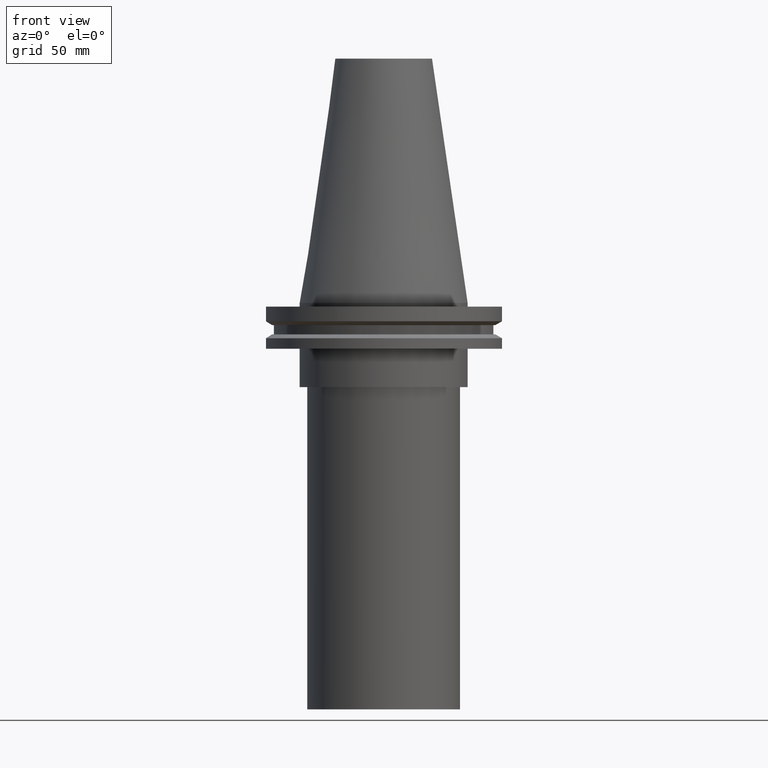
[diagram: clean part render]
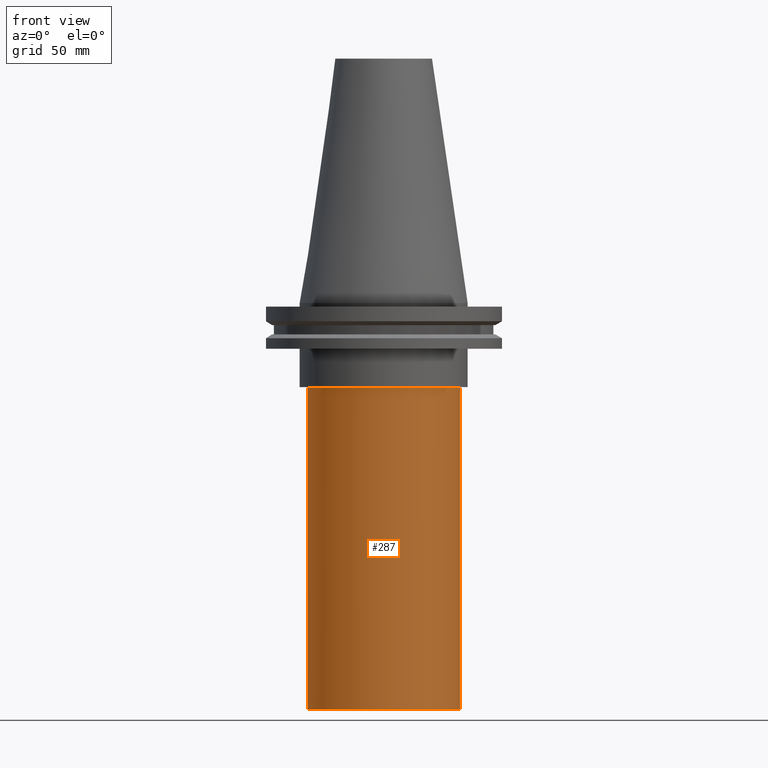
[diagram: same view with one face highlighted and labeled with its STEP entity id]
A machine part, front view. The second image highlights one B-rep face of the part: STEP entity #287.
In plain terms, the highlighted cylindrical surface (bore or boss wall) has radius 31.75 mm, axis along (-0, -0, 1).
Its self-contained STEP definition (entity closure, byte-faithful):
#3 = EDGE_CURVE ( 'NONE', #378, #378, #23, .T. ) ;
#23 = CIRCLE ( 'NONE', #71, 31.75000000000000000 ) ;
#25 = EDGE_LOOP ( 'NONE', ( #157 ) ) ;
#41 = CARTESIAN_POINT ( 'NONE',  ( 0.000000000000000000, 0.000000000000000000, -169.0000000000000000 ) ) ;
#45 = FACE_OUTER_BOUND ( 'NONE', #191, .T. ) ;
#71 = AXIS2_PLACEMENT_3D ( 'NONE', #41, #126, #331 ) ;
#123 = AXIS2_PLACEMENT_3D ( 'NONE', #257, #195, #320 ) ;
#126 = DIRECTION ( 'NONE',  ( -0.000000000000000000, -0.000000000000000000, 1.000000000000000000 ) ) ;
#127 = CARTESIAN_POINT ( 'NONE',  ( 0.000000000000000000, 0.000000000000000000, 0.000000000000000000 ) ) ;
#157 = ORIENTED_EDGE ( 'NONE', *, *, #349, .F. ) ;
#161 = DIRECTION ( 'NONE',  ( 1.000000000000000000, 0.000000000000000000, 0.000000000000000000 ) ) ;
#191 = EDGE_LOOP ( 'NONE', ( #245 ) ) ;
#195 = DIRECTION ( 'NONE',  ( -0.000000000000000000, -0.000000000000000000, 1.000000000000000000 ) ) ;
#229 = CARTESIAN_POINT ( 'NONE',  ( 31.75000000000000000, 0.000000000000000000, -169.0000000000000000 ) ) ;
#245 = ORIENTED_EDGE ( 'NONE', *, *, #3, .T. ) ;
#247 = CIRCLE ( 'NONE', #123, 31.75000000000000000 ) ;
#257 = CARTESIAN_POINT ( 'NONE',  ( 0.000000000000000000, 0.000000000000000000, -35.00000000000000000 ) ) ;
#262 = FACE_OUTER_BOUND ( 'NONE', #25, .T. ) ;
#266 = VERTEX_POINT ( 'NONE', #381 ) ;
#287 = ADVANCED_FACE ( 'NONE', ( #262, #45 ), #289, .T. ) ;
#289 = CYLINDRICAL_SURFACE ( 'NONE', #386, 31.75000000000000000 ) ;
#291 = DIRECTION ( 'NONE',  ( -0.000000000000000000, -0.000000000000000000, 1.000000000000000000 ) ) ;
#320 = DIRECTION ( 'NONE',  ( 1.000000000000000000, 0.000000000000000000, 0.000000000000000000 ) ) ;
#331 = DIRECTION ( 'NONE',  ( 1.000000000000000000, 0.000000000000000000, 0.000000000000000000 ) ) ;
#349 = EDGE_CURVE ( 'NONE', #266, #266, #247, .T. ) ;
#378 = VERTEX_POINT ( 'NONE', #229 ) ;
#381 = CARTESIAN_POINT ( 'NONE',  ( 31.75000000000000000, 0.000000000000000000, -35.00000000000000000 ) ) ;
#386 = AXIS2_PLACEMENT_3D ( 'NONE', #127, #291, #161 ) ;